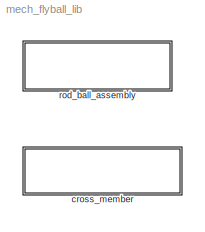
MODEL mech_flyball_lib
KIND library
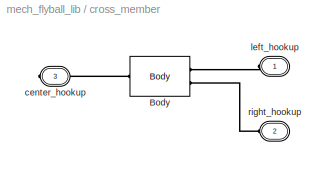
BLOCK [SubSystem] cross_member
  MaskCallbackString = ||
  MaskEnableString = on,on,on
  MaskIconFrame = on
  MaskIconOpaque = on
  MaskIconRotate = none
  MaskIconUnits = autoscale
  MaskPromptString = Length (cm)|Radius (cm)|Denisty (g/cm^3)
  MaskStyleString = edit,edit,edit
  MaskTabNameString = ,,
  MaskToolTipString = on,on,on
  MaskTunableValueString = on,on,on
  MaskValueString = 0|0|0
  MaskVarAliasString = ,,
  MaskVariables = rod_length=@1;rod_radius=@2;density=@3;
  MaskVisibilityString = on,on,on
  MinAlgLoopOccurrences = off
  Ports = [0, 0, 0, 0, 0, 2, 1]
  RTWSystemCode = Auto
  TreatAsAtomicUnit = off
BLOCK [Reference] cross_member/Body  REF=mblibv1/Bodies/Body
  CG = Left$CG$[0 0 0]$ADJOINING$ADJOINING$cm$[0 0 0]$Euler X-Y-Z$deg$WORLD$true
  ClassName = Body
  Density = 1
  DensityUnits = kg/m^3
  DensityUse = false
  DialogClass = MechanicalBodyBlock
  Inertia = mech_flyball_rod_inertia(rod_length, rod_radius, density, [1 0 0])
  InertiaUnits = g*cm^2
  LConnTagsString = CG
  Mass = mech_flyball_rod_mass(rod_length, rod_radius, density)
  MassUnits = g
  PhysicalDomain = mechanical
  PortType = workingframe
  Ports = [0, 0, 0, 0, 0, 1, 2]
  RConnTagsString = CS1|CS2
  Shape = Cylinder
  ShapeDims = [1 1]
  ShapeUnits = m
  ShapeUse = false
  SourceBlock = mblibv1/Bodies/Body
  SourceType = msb
  SubClassName = Unknown
  WorkingFrames = Right$CS1$-[rod_length 0 0]/2$CG$CG$cm$[0 0 0]$Euler X-Y-Z$deg$WORLD$true#Right$CS2$[rod_length 0 0]/2$CG$CG$cm$[0 0 0]$Euler X-Y-Z$deg$WORLD$true
BLOCK [PMIOPort] cross_member/center_hookup
  Port = 3
  Side = Right
BLOCK [PMIOPort] cross_member/left_hookup
  Port = 1
  Side = Left
BLOCK [PMIOPort] cross_member/right_hookup
  Port = 2
  Side = Left
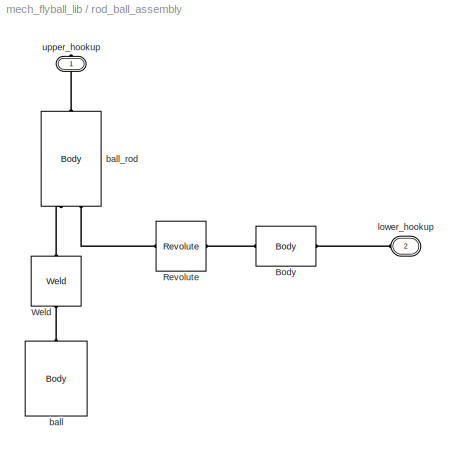
BLOCK [SubSystem] rod_ball_assembly
  MaskCallbackString = |||||
  MaskEnableString = on,on,on,on,on,on
  MaskIconFrame = on
  MaskIconOpaque = on
  MaskIconRotate = none
  MaskIconUnits = autoscale
  MaskPromptString = Radius of Ball (cm)|Radius of Rod (cm)|Length of rod (cm)|Hookup Length (cm)|Material Density (g/cm^3)|Rotation (rad)
  MaskStyleString = edit,edit,edit,edit,edit,edit
  MaskTabNameString = ,,,,,
  MaskToolTipString = on,on,on,on,on,on
  MaskTunableValueString = off,off,off,off,off,on
  MaskValueString = 0|1|1|1|1|0
  MaskVarAliasString = ,,,,,
  MaskVariables = ball_radius=@1;rod_radius=@2;rod_length=@3;hookup_length=@4;density=@5;rotation=@6;
  MaskVisibilityString = on,on,on,on,on,on
  MinAlgLoopOccurrences = off
  Ports = [0, 0, 0, 0, 0, 1, 1]
  RTWSystemCode = Auto
  TreatAsAtomicUnit = off
BLOCK [Reference] rod_ball_assembly/Body  REF=mblibv1/Bodies/Body
  CG = Left$CG$-[0 0 hookup_length]/2$CS1$CS1$cm$[0 0 0]$Euler X-Y-Z$rad$CS1$false
  ClassName = Body
  Density = 1
  DensityUnits = kg/m^3
  DensityUse = false
  DialogClass = MechanicalBodyBlock
  Inertia = mech_flyball_rod_inertia(hookup_length, rod_radius, density, [0 0 1])
  InertiaUnits = g*cm^2
  LConnTagsString = CS1
  Mass = mech_flyball_rod_mass(hookup_length, rod_radius, density)
  MassUnits = g
  PhysicalDomain = mechanical
  PortType = workingframe
  Ports = [0, 0, 0, 0, 0, 1, 1]
  RConnTagsString = CS2
  Shape = Cylinder
  ShapeDims = [1 1]
  ShapeUnits = m
  ShapeUse = false
  SourceBlock = mblibv1/Bodies/Body
  SourceType = msb
  SubClassName = Unknown
  WorkingFrames = Left$CS1$[0 0 0]$ADJOINING$ADJOINING$cm$[0 -2*rotation 0]$Euler X-Y-Z$rad$ADJOINING$true#Right$CS2$-[0 0 hookup_length]$CS1$CS1$cm$[0 0 0]$Euler X-Y-Z$rad$CS1$true
BLOCK [Reference] rod_ball_assembly/Revolute  REF=mblibv1/Joints/Revolute
  ClassName = Joint
  CutJoint = off
  DialogClass = JointBlock
  LConnTagsString = __newl0
  MarkAsCut = off
  NumSAPorts = 0
  PhysicalDomain = mechanical
  PortType = blob
  Ports = [0, 0, 0, 0, 0, 1, 1]
  PrimitiveProps = R1$WORLD$[0 1 0]$revolute
  Primitives = revolute
  RConnTagsString = __newr0
  SourceBlock = mblibv1/Joints/Revolute
  SourceType = msb
  SubClassName = Unknown
BLOCK [Reference] rod_ball_assembly/Weld  REF=mblibv1/Joints/Weld
  ClassName = Joint
  CutJoint = off
  DialogClass = JointBlock
  LConnTagsString = __newl0
  MarkAsCut = off
  NumSAPorts = 0
  PhysicalDomain = mechanical
  PortType = blob
  Ports = [0, 0, 0, 0, 0, 1, 1]
  PrimitiveProps = W$INERTIAL$[0 0 0]$weld
  Primitives = weld
  RConnTagsString = __newr0
  SourceBlock = mblibv1/Joints/Weld
  SourceType = msb
  SubClassName = Unknown
BLOCK [Reference] rod_ball_assembly/ball  REF=mblibv1/Bodies/Body
  CG = Left$CG$-[0 0 ball_radius]$CS1$CS1$cm$[0 0 0]$Euler X-Y-Z$deg$CS1$false
  ClassName = Body
  Density = 1
  DensityUnits = kg/m^3
  DensityUse = false
  DialogClass = MechanicalBodyBlock
  Inertia = eye(3)*2*(density*4*pi*ball_radius^3)/(3*5)*ball_radius^2
  InertiaUnits = g*cm^2
  LConnTagsString = CS1
  Mass = (density*4*pi*ball_radius^3)/3
  MassUnits = g
  PhysicalDomain = mechanical
  PortType = workingframe
  Ports = [0, 0, 0, 0, 0, 1]
  Shape = Cylinder
  ShapeDims = [1 1]
  ShapeUnits = m
  ShapeUse = false
  SourceBlock = mblibv1/Bodies/Body
  SourceType = msb
  SubClassName = Unknown
  WorkingFrames = Left$CS1$[0 0 0]$ADJOINING$ADJOINING$cm$[0 0 0]$Euler X-Y-Z$deg$ADJOINING$true
BLOCK [Reference] rod_ball_assembly/ball_rod  REF=mblibv1/Bodies/Body
  CG = Left$CG$-[0 0 rod_length]/2$CS1$CS1$cm$[0 0 0]$Euler X-Y-Z$rad$CS1$false
  ClassName = Body
  Density = 1
  DensityUnits = kg/m^3
  DensityUse = false
  DialogClass = MechanicalBodyBlock
  Inertia = mech_flyball_rod_inertia(rod_length, rod_radius, density, [0 0 1])
  InertiaUnits = g*cm^2
  LConnTagsString = CS1
  Mass = mech_flyball_rod_mass(rod_length, rod_radius, density)
  MassUnits = g
  PhysicalDomain = mechanical
  PortType = workingframe
  Ports = [0, 0, 0, 0, 0, 1, 2]
  RConnTagsString = CS2|CS3
  Shape = Cylinder
  ShapeDims = [1 1]
  ShapeUnits = m
  ShapeUse = false
  SourceBlock = mblibv1/Bodies/Body
  SourceType = msb
  SubClassName = Unknown
  WorkingFrames = Left$CS1$[0 0 0]$ADJOINING$ADJOINING$cm$[0 rotation 0]$Euler X-Y-Z$rad$ADJOINING$true#Right$CS2$-[0 0 rod_length]$CS1$CS1$cm$[0 0 0]$Euler X-Y-Z$rad$CS1$true#Right$CS3$-[0 0 hookup_length]$CS1$CS1$cm$[0 0 0]$Euler X-Y-Z$rad$CS1$true
BLOCK [PMIOPort] rod_ball_assembly/lower_hookup
  Port = 2
  Side = Left
BLOCK [PMIOPort] rod_ball_assembly/upper_hookup
  Port = 1
  Side = Right
PLINE cross_member/Body:LConn1 -- cross_member/center_hookup:RConn1
PLINE cross_member/Body:RConn1 -- cross_member/left_hookup:RConn1
PLINE cross_member/Body:RConn2 -- cross_member/right_hookup:RConn1
PLINE rod_ball_assembly/Body:LConn1 -- rod_ball_assembly/Revolute:RConn1
PLINE rod_ball_assembly/Body:RConn1 -- rod_ball_assembly/lower_hookup:RConn1
PLINE rod_ball_assembly/Revolute:LConn1 -- rod_ball_assembly/ball_rod:RConn2
PLINE rod_ball_assembly/Weld:LConn1 -- rod_ball_assembly/ball_rod:RConn1
PLINE rod_ball_assembly/Weld:RConn1 -- rod_ball_assembly/ball:LConn1
PLINE rod_ball_assembly/ball_rod:LConn1 -- rod_ball_assembly/upper_hookup:RConn1
